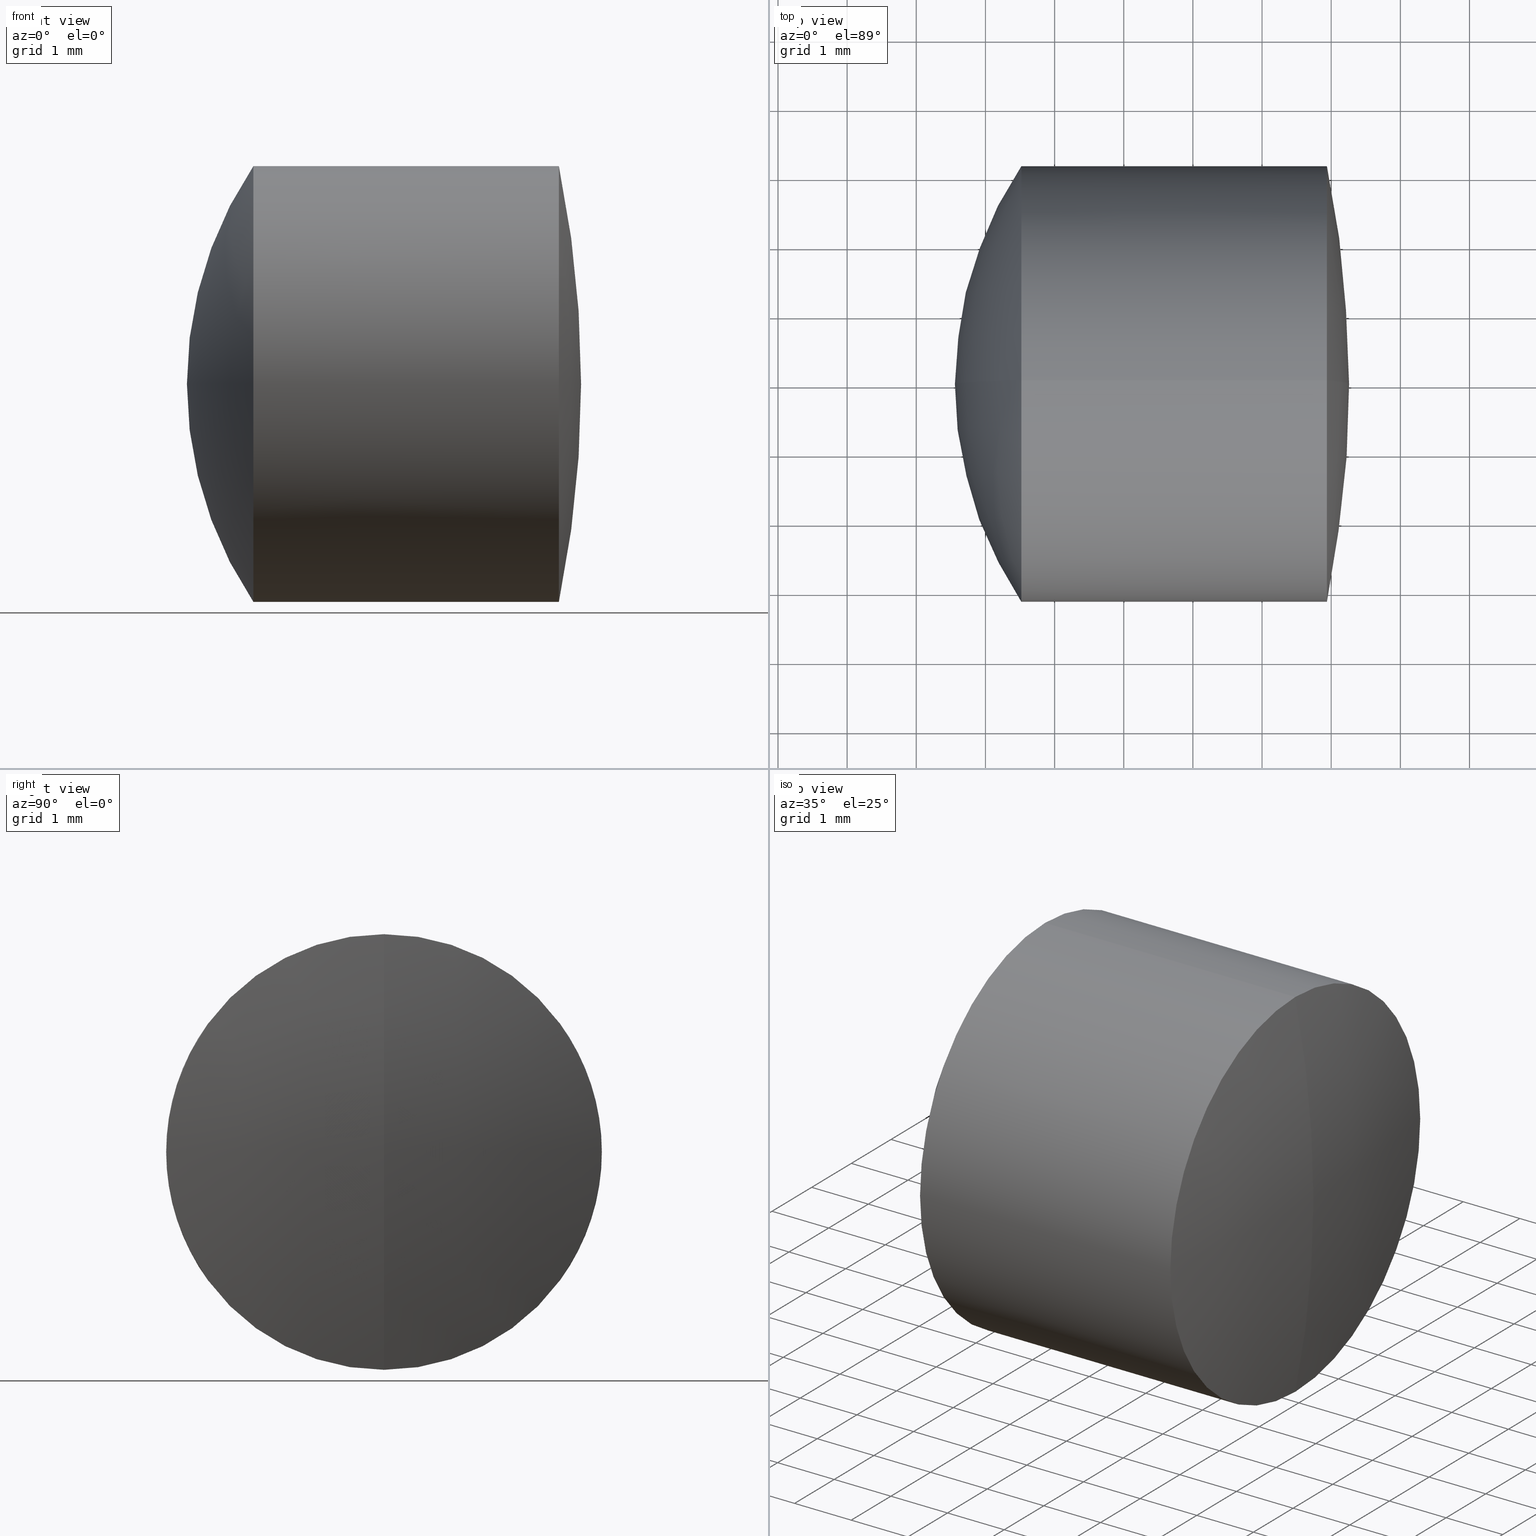
[diagram: canonical four-view strip — front | top / right | iso, engineering-drawing reading convention]
A machine part, canonical four-view strip (front | top / right | iso — engineering-drawing reading convention). The complete STEP part file that produces these views, byte-faithful:
ISO-10303-21;
HEADER;
FILE_DESCRIPTION (( 'STEP AP214' ),
    '1' );
FILE_NAME ('145007.STEP',
    '2019-05-08T03:25:57',
    ( 'user' ),
    ( '΢���й�' ),
    'SwSTEP 2.0',
    'SolidWorks 2016',
    '' );
FILE_SCHEMA (( 'AUTOMOTIVE_DESIGN' ));
ENDSEC;

DATA;
#1 = DIRECTION ( 'NONE',  ( 0.0000000000000000000, -1.000000000000000000, 0.0000000000000000000 ) ) ;
#2 = APPLICATION_CONTEXT ( 'automotive_design' ) ;
#3 = ORIENTED_EDGE ( 'NONE', *, *, #20, .T. ) ;
#4 = AXIS2_PLACEMENT_3D ( 'NONE', #114, #317, #146 ) ;
#5 = CIRCLE ( 'NONE', #118, 5.644999999999998700 ) ;
#6 = VERTEX_POINT ( 'NONE', #38 ) ;
#7 = SURFACE_STYLE_FILL_AREA ( #113 ) ;
#8 = CARTESIAN_POINT ( 'NONE',  ( 1.094604339932686600, 0.0000000000000000000, -3.388131789017201400E-018 ) ) ;
#9 = SPHERICAL_SURFACE ( 'NONE', #140, 15.63099999999999800 ) ;
#10 = ORIENTED_EDGE ( 'NONE', *, *, #183, .F. ) ;
#11 = DIRECTION ( 'NONE',  ( 0.0000000000000000000, 1.000000000000000000, 0.0000000000000000000 ) ) ;
#12 = AXIS2_PLACEMENT_3D ( 'NONE', #312, #35, #219 ) ;
#13 = ORIENTED_EDGE ( 'NONE', *, *, #205, .F. ) ;
#14 = DIRECTION ( 'NONE',  ( -1.000000000000000000, -0.0000000000000000000, -0.0000000000000000000 ) ) ;
#15 = CARTESIAN_POINT ( 'NONE',  ( 1.094604339932686600, 0.0000000000000000000, -3.388131789017201400E-018 ) ) ;
#16 = SURFACE_SIDE_STYLE ('',( #313 ) ) ;
#17 = CARTESIAN_POINT ( 'NONE',  ( -9.372395660067310200, 0.0000000000000000000, 0.0000000000000000000 ) ) ;
#18 = CARTESIAN_POINT ( 'NONE',  ( 6.203604339932685900, 0.0000000000000000000, -3.128856262189234900E-019 ) ) ;
#19 = VERTEX_POINT ( 'NONE', #191 ) ;
#20 = EDGE_CURVE ( 'NONE', #185, #210, #229, .T. ) ;
#21 = CIRCLE ( 'NONE', #338, 3.664000000000002400 ) ;
#22 = DIRECTION ( 'NONE',  ( 0.0000000000000000000, 1.000000000000000000, 0.0000000000000000000 ) ) ;
#23 = CYLINDRICAL_SURFACE ( 'NONE', #291, 3.150000000000000800 ) ;
#24 = SURFACE_SIDE_STYLE ('',( #26 ) ) ;
#25 = ADVANCED_FACE ( 'NONE', ( #57 ), #239, .T. ) ;
#26 = SURFACE_STYLE_FILL_AREA ( #179 ) ;
#27 = EDGE_LOOP ( 'NONE', ( #131, #110, #115, #69 ) ) ;
#28 = LINE ( 'NONE', #72, #119 ) ;
#29 = SPHERICAL_SURFACE ( 'NONE', #216, 5.644999999999998700 ) ;
#30 = PRODUCT_DEFINITION_FORMATION_WITH_SPECIFIED_SOURCE ( '�κ�', '', #45, .NOT_KNOWN. ) ;
#31 = SPHERICAL_SURFACE ( 'NONE', #96, 3.664000000000002400 ) ;
#32 = AXIS2_PLACEMENT_3D ( 'NONE', #340, #36, #290 ) ;
#33 = COLOUR_RGB ( '',1.000000000000000000, 1.000000000000000000, 1.000000000000000000 ) ;
#34 = ORIENTED_EDGE ( 'NONE', *, *, #230, .T. ) ;
#35 = DIRECTION ( 'NONE',  ( 0.0000000000000000000, -1.000000000000000000, 0.0000000000000000000 ) ) ;
#36 = DIRECTION ( 'NONE',  ( 0.0000000000000000000, 1.000000000000000000, 0.0000000000000000000 ) ) ;
#37 = CYLINDRICAL_SURFACE ( 'NONE', #158, 3.150000000000000800 ) ;
#38 = CARTESIAN_POINT ( 'NONE',  ( 6.258604339932689200, 0.0000000000000000000, 9.571227058736139200E-016 ) ) ;
#39 = UNCERTAINTY_MEASURE_WITH_UNIT (LENGTH_MEASURE( 1.000000000000000100E-005 ), #44, 'distance_accuracy_value', 'NONE');
#40 = CARTESIAN_POINT ( 'NONE',  ( 1.519212703871500900, 0.0000000000000000000, 0.0000000000000000000 ) ) ;
#41 = PRESENTATION_LAYER_ASSIGNMENT (  '', '', ( #84 ) ) ;
#42 = DIRECTION ( 'NONE',  ( 0.0000000000000000000, -1.224646799147353200E-016, 1.000000000000000000 ) ) ;
#43 =( NAMED_UNIT ( * ) SI_UNIT ( $, .STERADIAN. ) SOLID_ANGLE_UNIT ( ) );
#44 =( LENGTH_UNIT ( ) NAMED_UNIT ( * ) SI_UNIT ( .MILLI., .METRE. ) );
#45 = PRODUCT ( '145007', '145007', '', ( #226 ) ) ;
#46 = ORIENTED_EDGE ( 'NONE', *, *, #200, .F. ) ;
#47 = DIRECTION ( 'NONE',  ( 0.0000000000000000000, -1.224646799147353500E-016, 1.000000000000000000 ) ) ;
#48 = DIRECTION ( 'NONE',  ( 0.0000000000000000000, 0.0000000000000000000, 1.000000000000000000 ) ) ;
#49 = DIRECTION ( 'NONE',  ( -1.000000000000000000, -0.0000000000000000000, -0.0000000000000000000 ) ) ;
#50 = CARTESIAN_POINT ( 'NONE',  ( 5.937916583646074100, 3.857637417314163200E-016, -3.150000000000000400 ) ) ;
#51 =( LENGTH_UNIT ( ) NAMED_UNIT ( * ) SI_UNIT ( .MILLI., .METRE. ) );
#52 = ADVANCED_FACE ( 'NONE', ( #247 ), #23, .T. ) ;
#53 = AXIS2_PLACEMENT_3D ( 'NONE', #261, #97, #292 ) ;
#54 = ORIENTED_EDGE ( 'NONE', *, *, #94, .F. ) ;
#55 = DIRECTION ( 'NONE',  ( -1.000000000000000000, -0.0000000000000000000, -0.0000000000000000000 ) ) ;
#56 = DIRECTION ( 'NONE',  ( -1.000000000000000000, -0.0000000000000000000, -0.0000000000000000000 ) ) ;
#57 = FACE_OUTER_BOUND ( 'NONE', #117, .T. ) ;
#58 = ORIENTED_EDGE ( 'NONE', *, *, #134, .F. ) ;
#59 = DIRECTION ( 'NONE',  ( 0.0000000000000000000, 0.0000000000000000000, 1.000000000000000000 ) ) ;
#60 = PRODUCT_DEFINITION_CONTEXT ( 'detailed design', #249, 'design' ) ;
#61 = SURFACE_STYLE_USAGE ( .BOTH. , #256 ) ;
#62 = VECTOR ( 'NONE', #325, 1000.000000000000000 ) ;
#63 = AXIS2_PLACEMENT_3D ( 'NONE', #66, #254, #281 ) ;
#64 = CARTESIAN_POINT ( 'NONE',  ( 0.0000000000000000000, 0.0000000000000000000, 0.0000000000000000000 ) ) ;
#65 = DIRECTION ( 'NONE',  ( 0.0000000000000000000, 0.0000000000000000000, 1.000000000000000000 ) ) ;
#66 = CARTESIAN_POINT ( 'NONE',  ( 2.966073281700092800, 0.0000000000000000000, 0.0000000000000000000 ) ) ;
#67 = DIRECTION ( 'NONE',  ( 0.0000000000000000000, 0.0000000000000000000, 1.000000000000000000 ) ) ;
#68 = PRESENTATION_STYLE_ASSIGNMENT (( #61 ) ) ;
#69 = ORIENTED_EDGE ( 'NONE', *, *, #298, .F. ) ;
#70 =( NAMED_UNIT ( * ) SI_UNIT ( $, .STERADIAN. ) SOLID_ANGLE_UNIT ( ) );
#71 = AXIS2_PLACEMENT_3D ( 'NONE', #18, #232, #48 ) ;
#72 = CARTESIAN_POINT ( 'NONE',  ( -0.5519199926577972300, 0.0000000000000000000, 3.150000000000000800 ) ) ;
#73 = ORIENTED_EDGE ( 'NONE', *, *, #269, .F. ) ;
#74 = CARTESIAN_POINT ( 'NONE',  ( -0.8160621761658039000, 3.857637417314162700E-016, -3.149999999999999900 ) ) ;
#75 = DIRECTION ( 'NONE',  ( 0.0000000000000000000, 0.0000000000000000000, 1.000000000000000000 ) ) ;
#76 = FILL_AREA_STYLE_COLOUR ( '', #33 ) ;
#77 = SPHERICAL_SURFACE ( 'NONE', #332, 3.664000000000002400 ) ;
#78 = ORIENTED_EDGE ( 'NONE', *, *, #85, .F. ) ;
#79 = ADVANCED_FACE ( 'NONE', ( #316 ), #37, .T. ) ;
#80 = FACE_OUTER_BOUND ( 'NONE', #221, .T. ) ;
#81 = ORIENTED_EDGE ( 'NONE', *, *, #134, .T. ) ;
#82 = DIRECTION ( 'NONE',  ( 1.000000000000000000, 0.0000000000000000000, 0.0000000000000000000 ) ) ;
#83 = COLOUR_RGB ( '',1.000000000000000000, 1.000000000000000000, 1.000000000000000000 ) ;
#84 = STYLED_ITEM ( 'NONE', ( #68 ), #152 ) ;
#85 = EDGE_CURVE ( 'NONE', #104, #334, #326, .T. ) ;
#86 = EDGE_LOOP ( 'NONE', ( #144, #196, #78 ) ) ;
#87 = AXIS2_PLACEMENT_3D ( 'NONE', #121, #323, #155 ) ;
#88 = CARTESIAN_POINT ( 'NONE',  ( 0.5586043399326868800, 0.0000000000000000000, 3.453436734331214600E-016 ) ) ;
#89 = CARTESIAN_POINT ( 'NONE',  ( 1.519212703871500900, 0.0000000000000000000, 0.0000000000000000000 ) ) ;
#90 = ORIENTED_EDGE ( 'NONE', *, *, #245, .F. ) ;
#91 = FILL_AREA_STYLE_COLOUR ( '', #126 ) ;
#92 = CARTESIAN_POINT ( 'NONE',  ( 2.966073281700091900, 3.857637417314163700E-016, -3.150000000000000800 ) ) ;
#93 = DIRECTION ( 'NONE',  ( 0.0000000000000000000, 0.0000000000000000000, 1.000000000000000000 ) ) ;
#94 = EDGE_CURVE ( 'NONE', #279, #149, #159, .T. ) ;
#95 = FILL_AREA_STYLE_COLOUR ( '', #83 ) ;
#96 = AXIS2_PLACEMENT_3D ( 'NONE', #335, #282, #280 ) ;
#97 = DIRECTION ( 'NONE',  ( 0.0000000000000000000, -1.000000000000000000, 0.0000000000000000000 ) ) ;
#98 = PRESENTATION_STYLE_ASSIGNMENT (( #208 ) ) ;
#99 = ORIENTED_EDGE ( 'NONE', *, *, #277, .F. ) ;
#100 = EDGE_CURVE ( 'NONE', #272, #279, #278, .T. ) ;
#101 = CARTESIAN_POINT ( 'NONE',  ( -9.372395660067310200, 0.0000000000000000000, 0.0000000000000000000 ) ) ;
#102 = DIRECTION ( 'NONE',  ( -0.0000000000000000000, 1.000000000000000000, 1.224646799147353200E-016 ) ) ;
#103 = EDGE_CURVE ( 'NONE', #185, #279, #147, .T. ) ;
#104 = VERTEX_POINT ( 'NONE', #188 ) ;
#105 =( NAMED_UNIT ( * ) PLANE_ANGLE_UNIT ( ) SI_UNIT ( $, .RADIAN. ) );
#106 = AXIS2_PLACEMENT_3D ( 'NONE', #120, #322, #320 ) ;
#107 = ORIENTED_EDGE ( 'NONE', *, *, #214, .T. ) ;
#108 = ORIENTED_EDGE ( 'NONE', *, *, #94, .T. ) ;
#109 = EDGE_CURVE ( 'NONE', #334, #176, #171, .T. ) ;
#110 = ORIENTED_EDGE ( 'NONE', *, *, #269, .T. ) ;
#111 = CARTESIAN_POINT ( 'NONE',  ( 6.203604339932685900, 0.0000000000000000000, -3.128856262189234900E-019 ) ) ;
#112 = DIRECTION ( 'NONE',  ( 0.0000000000000000000, 0.0000000000000000000, 1.000000000000000000 ) ) ;
#113 = FILL_AREA_STYLE ('',( #91 ) ) ;
#114 = CARTESIAN_POINT ( 'NONE',  ( 2.966073281700092800, 0.0000000000000000000, 0.0000000000000000000 ) ) ;
#115 = ORIENTED_EDGE ( 'NONE', *, *, #251, .T. ) ;
#116 = DIRECTION ( 'NONE',  ( -1.000000000000000000, -0.0000000000000000000, -0.0000000000000000000 ) ) ;
#117 = EDGE_LOOP ( 'NONE', ( #58, #139, #193 ) ) ;
#118 = AXIS2_PLACEMENT_3D ( 'NONE', #263, #102, #296 ) ;
#119 = VECTOR ( 'NONE', #223, 1000.000000000000000 ) ;
#120 = CARTESIAN_POINT ( 'NONE',  ( -0.8160621761658039000, 0.0000000000000000000, 0.0000000000000000000 ) ) ;
#121 = CARTESIAN_POINT ( 'NONE',  ( 5.937916583646074100, 0.0000000000000000000, 0.0000000000000000000 ) ) ;
#122 = CARTESIAN_POINT ( 'NONE',  ( -9.372395660067310200, 0.0000000000000000000, 0.0000000000000000000 ) ) ;
#123 = DIRECTION ( 'NONE',  ( 0.0000000000000000000, 0.0000000000000000000, 1.000000000000000000 ) ) ;
#124 = EDGE_LOOP ( 'NONE', ( #99, #212, #108 ) ) ;
#125 = AXIS2_PLACEMENT_3D ( 'NONE', #89, #255, #59 ) ;
#126 = COLOUR_RGB ( '',1.000000000000000000, 1.000000000000000000, 1.000000000000000000 ) ;
#127 = ORIENTED_EDGE ( 'NONE', *, *, #200, .T. ) ;
#128 = ADVANCED_FACE ( 'NONE', ( #209 ), #31, .F. ) ;
#129 = EDGE_LOOP ( 'NONE', ( #310, #127, #163, #342 ) ) ;
#130 = CIRCLE ( 'NONE', #175, 3.664000000000002400 ) ;
#131 = ORIENTED_EDGE ( 'NONE', *, *, #109, .F. ) ;
#132 = PRODUCT_DEFINITION_SHAPE ( 'NONE', 'NONE',  #302 ) ;
#133 = CARTESIAN_POINT ( 'NONE',  ( 5.937916583646074100, 0.0000000000000000000, 0.0000000000000000000 ) ) ;
#134 = EDGE_CURVE ( 'NONE', #154, #185, #270, .T. ) ;
#135 = FACE_OUTER_BOUND ( 'NONE', #86, .T. ) ;
#136 = CLOSED_SHELL ( 'NONE', ( #271, #79, #243, #128, #52, #301 ) ) ;
#137 = UNCERTAINTY_MEASURE_WITH_UNIT (LENGTH_MEASURE( 1.000000000000000100E-005 ), #222, 'distance_accuracy_value', 'NONE');
#138 = VECTOR ( 'NONE', #141, 1000.000000000000000 ) ;
#139 = ORIENTED_EDGE ( 'NONE', *, *, #205, .T. ) ;
#140 = AXIS2_PLACEMENT_3D ( 'NONE', #101, #344, #346 ) ;
#141 = DIRECTION ( 'NONE',  ( -1.000000000000000000, -0.0000000000000000000, -0.0000000000000000000 ) ) ;
#142 = DIRECTION ( 'NONE',  ( -1.000000000000000000, -0.0000000000000000000, -0.0000000000000000000 ) ) ;
#143 = DIRECTION ( 'NONE',  ( 0.0000000000000000000, -1.000000000000000000, 0.0000000000000000000 ) ) ;
#144 = ORIENTED_EDGE ( 'NONE', *, *, #246, .F. ) ;
#145 =( NAMED_UNIT ( * ) SI_UNIT ( $, .STERADIAN. ) SOLID_ANGLE_UNIT ( ) );
#146 = DIRECTION ( 'NONE',  ( 0.0000000000000000000, 0.0000000000000000000, 1.000000000000000000 ) ) ;
#147 = LINE ( 'NONE', #339, #138 ) ;
#148 = STYLED_ITEM ( 'NONE', ( #236 ), #241 ) ;
#149 = VERTEX_POINT ( 'NONE', #88 ) ;
#150 = DIRECTION ( 'NONE',  ( -0.0000000000000000000, 1.000000000000000000, 1.224646799147353200E-016 ) ) ;
#151 = SPHERICAL_SURFACE ( 'NONE', #32, 3.664000000000002400 ) ;
#152 = MANIFOLD_SOLID_BREP ( '��ת1', #288 ) ;
#153 = LINE ( 'NONE', #74, #62 ) ;
#154 = VERTEX_POINT ( 'NONE', #285 ) ;
#155 = DIRECTION ( 'NONE',  ( 0.0000000000000000000, 0.0000000000000000000, 1.000000000000000000 ) ) ;
#156 = CIRCLE ( 'NONE', #195, 3.664000000000002400 ) ;
#157 = CARTESIAN_POINT ( 'NONE',  ( 1.094604339932686600, 0.0000000000000000000, -3.388131789017201400E-018 ) ) ;
#158 = AXIS2_PLACEMENT_3D ( 'NONE', #227, #14, #173 ) ;
#159 = CIRCLE ( 'NONE', #165, 5.644999999999998700 ) ;
#160 = ADVANCED_FACE ( 'NONE', ( #170 ), #77, .T. ) ;
#161 = AXIS2_PLACEMENT_3D ( 'NONE', #133, #55, #250 ) ;
#162 = AXIS2_PLACEMENT_3D ( 'NONE', #203, #49, #237 ) ;
#163 = ORIENTED_EDGE ( 'NONE', *, *, #103, .T. ) ;
#164 = EDGE_LOOP ( 'NONE', ( #343, #34, #300 ) ) ;
#165 = AXIS2_PLACEMENT_3D ( 'NONE', #336, #143, #311 ) ;
#166 = AXIS2_PLACEMENT_3D ( 'NONE', #40, #228, #67 ) ;
#167 = CARTESIAN_POINT ( 'NONE',  ( -0.5519199926577972300, 3.857637417314163700E-016, -3.150000000000000800 ) ) ;
#168 = EDGE_LOOP ( 'NONE', ( #321, #283, #107 ) ) ;
#169 = CYLINDRICAL_SURFACE ( 'NONE', #106, 3.149999999999999900 ) ;
#170 = FACE_OUTER_BOUND ( 'NONE', #287, .T. ) ;
#171 = LINE ( 'NONE', #167, #184 ) ;
#172 = CARTESIAN_POINT ( 'NONE',  ( -0.5519199926577972300, 0.0000000000000000000, 0.0000000000000000000 ) ) ;
#173 = DIRECTION ( 'NONE',  ( 0.0000000000000000000, 0.0000000000000000000, 1.000000000000000000 ) ) ;
#174 = FILL_AREA_STYLE ('',( #95 ) ) ;
#175 = AXIS2_PLACEMENT_3D ( 'NONE', #157, #1, #178 ) ;
#176 = VERTEX_POINT ( 'NONE', #92 ) ;
#177 = ORIENTED_EDGE ( 'NONE', *, *, #251, .F. ) ;
#178 = DIRECTION ( 'NONE',  ( 0.0000000000000000000, 0.0000000000000000000, -1.000000000000000000 ) ) ;
#179 = FILL_AREA_STYLE ('',( #76 ) ) ;
#180 = ADVANCED_FACE ( 'NONE', ( #304 ), #29, .T. ) ;
#181 = ORIENTED_EDGE ( 'NONE', *, *, #103, .F. ) ;
#182 = FACE_OUTER_BOUND ( 'NONE', #129, .T. ) ;
#183 = EDGE_CURVE ( 'NONE', #279, #272, #324, .T. ) ;
#184 = VECTOR ( 'NONE', #142, 1000.000000000000000 ) ;
#185 = VERTEX_POINT ( 'NONE', #257 ) ;
#186 = FACE_OUTER_BOUND ( 'NONE', #234, .T. ) ;
#187 = AXIS2_PLACEMENT_3D ( 'NONE', #122, #22, #75 ) ;
#188 = CARTESIAN_POINT ( 'NONE',  ( 5.937916583646074100, 0.0000000000000000000, 3.150000000000000400 ) ) ;
#189 = CYLINDRICAL_SURFACE ( 'NONE', #274, 3.149999999999999900 ) ;
#190 = DIRECTION ( 'NONE',  ( 0.0000000000000000000, 0.0000000000000000000, 1.000000000000000000 ) ) ;
#191 = CARTESIAN_POINT ( 'NONE',  ( 4.758604339932689200, 0.0000000000000000000, 2.209671618147780500E-016 ) ) ;
#192 = CARTESIAN_POINT ( 'NONE',  ( 2.966073281700092800, 3.857637417314162700E-016, -3.149999999999999900 ) ) ;
#193 = ORIENTED_EDGE ( 'NONE', *, *, #20, .F. ) ;
#194 = DIRECTION ( 'NONE',  ( -0.0000000000000000000, 1.000000000000000000, 1.224646799147353200E-016 ) ) ;
#195 = AXIS2_PLACEMENT_3D ( 'NONE', #15, #194, #42 ) ;
#196 = ORIENTED_EDGE ( 'NONE', *, *, #245, .T. ) ;
#197 = SURFACE_STYLE_USAGE ( .BOTH. , #16 ) ;
#198 = CIRCLE ( 'NONE', #53, 15.63099999999999800 ) ;
#199 = DIRECTION ( 'NONE',  ( -0.0000000000000000000, 1.000000000000000000, 1.224646799147353200E-016 ) ) ;
#200 = EDGE_CURVE ( 'NONE', #210, #185, #224, .T. ) ;
#201 = SPHERICAL_SURFACE ( 'NONE', #187, 15.63099999999999800 ) ;
#202 = ORIENTED_EDGE ( 'NONE', *, *, #85, .T. ) ;
#203 = CARTESIAN_POINT ( 'NONE',  ( 2.966073281700091900, 0.0000000000000000000, 0.0000000000000000000 ) ) ;
#204 = CIRCLE ( 'NONE', #242, 15.63099999999999800 ) ;
#205 = EDGE_CURVE ( 'NONE', #154, #210, #156, .T. ) ;
#206 = MECHANICAL_DESIGN_GEOMETRIC_PRESENTATION_REPRESENTATION (  '', ( #148 ), #259 ) ;
#207 = VERTEX_POINT ( 'NONE', #337 ) ;
#208 = SURFACE_STYLE_USAGE ( .BOTH. , #24 ) ;
#209 = FACE_OUTER_BOUND ( 'NONE', #168, .T. ) ;
#210 = VERTEX_POINT ( 'NONE', #192 ) ;
#211 = CIRCLE ( 'NONE', #162, 3.150000000000000800 ) ;
#212 = ORIENTED_EDGE ( 'NONE', *, *, #100, .T. ) ;
#213 = CARTESIAN_POINT ( 'NONE',  ( 1.094604339932686600, 0.0000000000000000000, -3.388131789017201400E-018 ) ) ;
#214 = EDGE_CURVE ( 'NONE', #207, #176, #262, .T. ) ;
#215 = EDGE_LOOP ( 'NONE', ( #3, #306, #10, #181 ) ) ;
#216 = AXIS2_PLACEMENT_3D ( 'NONE', #111, #11, #315 ) ;
#217 = APPLICATION_PROTOCOL_DEFINITION ( 'draft international standard', 'automotive_design', 1998, #249 ) ;
#218 =( NAMED_UNIT ( * ) PLANE_ANGLE_UNIT ( ) SI_UNIT ( $, .RADIAN. ) );
#219 = DIRECTION ( 'NONE',  ( 0.0000000000000000000, 0.0000000000000000000, -1.000000000000000000 ) ) ;
#220 = CIRCLE ( 'NONE', #87, 3.150000000000000400 ) ;
#221 = EDGE_LOOP ( 'NONE', ( #90, #295, #73 ) ) ;
#222 =( LENGTH_UNIT ( ) NAMED_UNIT ( * ) SI_UNIT ( .MILLI., .METRE. ) );
#223 = DIRECTION ( 'NONE',  ( -1.000000000000000000, -0.0000000000000000000, -0.0000000000000000000 ) ) ;
#224 = CIRCLE ( 'NONE', #4, 3.149999999999999900 ) ;
#225 = DIRECTION ( 'NONE',  ( 0.0000000000000000000, 1.000000000000000000, 0.0000000000000000000 ) ) ;
#226 = PRODUCT_CONTEXT ( 'NONE', #2, 'mechanical' ) ;
#227 = CARTESIAN_POINT ( 'NONE',  ( -0.5519199926577972300, 0.0000000000000000000, 0.0000000000000000000 ) ) ;
#228 = DIRECTION ( 'NONE',  ( -1.000000000000000000, -0.0000000000000000000, -0.0000000000000000000 ) ) ;
#229 = CIRCLE ( 'NONE', #63, 3.149999999999999900 ) ;
#230 = EDGE_CURVE ( 'NONE', #19, #176, #21, .T. ) ;
#231 =( NAMED_UNIT ( * ) PLANE_ANGLE_UNIT ( ) SI_UNIT ( $, .RADIAN. ) );
#232 = DIRECTION ( 'NONE',  ( 0.0000000000000000000, 1.000000000000000000, 0.0000000000000000000 ) ) ;
#233 =( GEOMETRIC_REPRESENTATION_CONTEXT ( 3 ) GLOBAL_UNCERTAINTY_ASSIGNED_CONTEXT ( ( #267 ) ) GLOBAL_UNIT_ASSIGNED_CONTEXT ( ( #238, #105, #299 ) ) REPRESENTATION_CONTEXT ( 'NONE', 'WORKASPACE' ) );
#234 = EDGE_LOOP ( 'NONE', ( #303, #252, #54 ) ) ;
#235 = CARTESIAN_POINT ( 'NONE',  ( 1.519212703871501300, 0.0000000000000000000, 3.150000000000000400 ) ) ;
#236 = PRESENTATION_STYLE_ASSIGNMENT (( #197 ) ) ;
#237 = DIRECTION ( 'NONE',  ( 0.0000000000000000000, 0.0000000000000000000, 1.000000000000000000 ) ) ;
#238 =( LENGTH_UNIT ( ) NAMED_UNIT ( * ) SI_UNIT ( .MILLI., .METRE. ) );
#239 = SPHERICAL_SURFACE ( 'NONE', #273, 3.664000000000002400 ) ;
#240 =( NAMED_UNIT ( * ) PLANE_ANGLE_UNIT ( ) SI_UNIT ( $, .RADIAN. ) );
#241 = MANIFOLD_SOLID_BREP ( '��ת3', #136 ) ;
#242 = AXIS2_PLACEMENT_3D ( 'NONE', #17, #199, #47 ) ;
#243 = ADVANCED_FACE ( 'NONE', ( #286 ), #151, .F. ) ;
#244 = ORIENTED_EDGE ( 'NONE', *, *, #214, .F. ) ;
#245 = EDGE_CURVE ( 'NONE', #6, #334, #204, .T. ) ;
#246 = EDGE_CURVE ( 'NONE', #6, #104, #198, .T. ) ;
#247 = FACE_OUTER_BOUND ( 'NONE', #27, .T. ) ;
#248 = PRESENTATION_LAYER_ASSIGNMENT (  '', '', ( #148 ) ) ;
#249 = APPLICATION_CONTEXT ( 'automotive_design' ) ;
#250 = DIRECTION ( 'NONE',  ( 0.0000000000000000000, 0.0000000000000000000, 1.000000000000000000 ) ) ;
#251 = EDGE_CURVE ( 'NONE', #104, #207, #28, .T. ) ;
#252 = ORIENTED_EDGE ( 'NONE', *, *, #277, .T. ) ;
#253 = PRESENTATION_LAYER_ASSIGNMENT (  '', '', ( #308 ) ) ;
#254 = DIRECTION ( 'NONE',  ( -1.000000000000000000, -0.0000000000000000000, -0.0000000000000000000 ) ) ;
#255 = DIRECTION ( 'NONE',  ( -1.000000000000000000, -0.0000000000000000000, -0.0000000000000000000 ) ) ;
#256 = SURFACE_SIDE_STYLE ('',( #7 ) ) ;
#257 = CARTESIAN_POINT ( 'NONE',  ( 2.966073281700092800, 0.0000000000000000000, 3.149999999999999900 ) ) ;
#258 = DIRECTION ( 'NONE',  ( 0.0000000000000000000, 0.0000000000000000000, 1.000000000000000000 ) ) ;
#259 =( GEOMETRIC_REPRESENTATION_CONTEXT ( 3 ) GLOBAL_UNCERTAINTY_ASSIGNED_CONTEXT ( ( #39 ) ) GLOBAL_UNIT_ASSIGNED_CONTEXT ( ( #44, #231, #70 ) ) REPRESENTATION_CONTEXT ( 'NONE', 'WORKASPACE' ) );
#260 = EDGE_LOOP ( 'NONE', ( #202, #330, #244, #177 ) ) ;
#261 = CARTESIAN_POINT ( 'NONE',  ( -9.372395660067310200, 0.0000000000000000000, 0.0000000000000000000 ) ) ;
#262 = CIRCLE ( 'NONE', #319, 3.150000000000000800 ) ;
#263 = CARTESIAN_POINT ( 'NONE',  ( 6.203604339932685900, 0.0000000000000000000, -3.128856262189234900E-019 ) ) ;
#264 = CARTESIAN_POINT ( 'NONE',  ( -0.8160621761658039000, 0.0000000000000000000, 0.0000000000000000000 ) ) ;
#265 = ADVANCED_FACE ( 'NONE', ( #182 ), #169, .T. ) ;
#266 =( GEOMETRIC_REPRESENTATION_CONTEXT ( 3 ) GLOBAL_UNCERTAINTY_ASSIGNED_CONTEXT ( ( #329 ) ) GLOBAL_UNIT_ASSIGNED_CONTEXT ( ( #51, #240, #43 ) ) REPRESENTATION_CONTEXT ( 'NONE', 'WORKASPACE' ) );
#267 = UNCERTAINTY_MEASURE_WITH_UNIT (LENGTH_MEASURE( 1.000000000000000100E-005 ), #238, 'distance_accuracy_value', 'NONE');
#268 = ADVANCED_FACE ( 'NONE', ( #186 ), #331, .T. ) ;
#269 = EDGE_CURVE ( 'NONE', #334, #104, #220, .T. ) ;
#270 = CIRCLE ( 'NONE', #12, 3.664000000000002400 ) ;
#271 = ADVANCED_FACE ( 'NONE', ( #135 ), #9, .T. ) ;
#272 = VERTEX_POINT ( 'NONE', #294 ) ;
#273 = AXIS2_PLACEMENT_3D ( 'NONE', #213, #309, #93 ) ;
#274 = AXIS2_PLACEMENT_3D ( 'NONE', #264, #297, #123 ) ;
#275 = SHAPE_DEFINITION_REPRESENTATION ( #132, #333 ) ;
#276 = MECHANICAL_DESIGN_GEOMETRIC_PRESENTATION_REPRESENTATION (  '', ( #84 ), #293 ) ;
#277 = EDGE_CURVE ( 'NONE', #272, #149, #5, .T. ) ;
#278 = CIRCLE ( 'NONE', #125, 3.149999999999999900 ) ;
#279 = VERTEX_POINT ( 'NONE', #235 ) ;
#280 = DIRECTION ( 'NONE',  ( 0.0000000000000000000, 0.0000000000000000000, 1.000000000000000000 ) ) ;
#281 = DIRECTION ( 'NONE',  ( 0.0000000000000000000, 0.0000000000000000000, 1.000000000000000000 ) ) ;
#282 = DIRECTION ( 'NONE',  ( 0.0000000000000000000, 1.000000000000000000, 0.0000000000000000000 ) ) ;
#283 = ORIENTED_EDGE ( 'NONE', *, *, #307, .T. ) ;
#284 = EDGE_CURVE ( 'NONE', #210, #272, #153, .T. ) ;
#285 = CARTESIAN_POINT ( 'NONE',  ( 4.758604339932689200, 0.0000000000000000000, 2.209671618147780500E-016 ) ) ;
#286 = FACE_OUTER_BOUND ( 'NONE', #164, .T. ) ;
#287 = EDGE_LOOP ( 'NONE', ( #13, #81, #46 ) ) ;
#288 = CLOSED_SHELL ( 'NONE', ( #25, #328, #268, #180, #265, #160 ) ) ;
#289 = CARTESIAN_POINT ( 'NONE',  ( 2.966073281700091900, 0.0000000000000000000, 0.0000000000000000000 ) ) ;
#290 = DIRECTION ( 'NONE',  ( 0.0000000000000000000, 0.0000000000000000000, 1.000000000000000000 ) ) ;
#291 = AXIS2_PLACEMENT_3D ( 'NONE', #172, #56, #258 ) ;
#292 = DIRECTION ( 'NONE',  ( 0.0000000000000000000, 0.0000000000000000000, -1.000000000000000000 ) ) ;
#293 =( GEOMETRIC_REPRESENTATION_CONTEXT ( 3 ) GLOBAL_UNCERTAINTY_ASSIGNED_CONTEXT ( ( #137 ) ) GLOBAL_UNIT_ASSIGNED_CONTEXT ( ( #222, #218, #145 ) ) REPRESENTATION_CONTEXT ( 'NONE', 'WORKASPACE' ) );
#294 = CARTESIAN_POINT ( 'NONE',  ( 1.519212703871501300, 3.857637417314163200E-016, -3.150000000000000400 ) ) ;
#295 = ORIENTED_EDGE ( 'NONE', *, *, #246, .T. ) ;
#296 = DIRECTION ( 'NONE',  ( 0.0000000000000000000, -1.224646799147353200E-016, 1.000000000000000000 ) ) ;
#297 = DIRECTION ( 'NONE',  ( -1.000000000000000000, -0.0000000000000000000, -0.0000000000000000000 ) ) ;
#298 = EDGE_CURVE ( 'NONE', #176, #207, #211, .T. ) ;
#299 =( NAMED_UNIT ( * ) SI_UNIT ( $, .STERADIAN. ) SOLID_ANGLE_UNIT ( ) );
#300 = ORIENTED_EDGE ( 'NONE', *, *, #298, .T. ) ;
#301 = ADVANCED_FACE ( 'NONE', ( #80 ), #201, .T. ) ;
#302 = PRODUCT_DEFINITION ( 'δ֪', '', #30, #60 ) ;
#303 = ORIENTED_EDGE ( 'NONE', *, *, #183, .T. ) ;
#304 = FACE_OUTER_BOUND ( 'NONE', #124, .T. ) ;
#305 = AXIS2_PLACEMENT_3D ( 'NONE', #64, #112, #82 ) ;
#306 = ORIENTED_EDGE ( 'NONE', *, *, #284, .T. ) ;
#307 = EDGE_CURVE ( 'NONE', #19, #207, #130, .T. ) ;
#308 = STYLED_ITEM ( 'NONE', ( #98 ), #333 ) ;
#309 = DIRECTION ( 'NONE',  ( 0.0000000000000000000, 1.000000000000000000, 0.0000000000000000000 ) ) ;
#310 = ORIENTED_EDGE ( 'NONE', *, *, #284, .F. ) ;
#311 = DIRECTION ( 'NONE',  ( 0.0000000000000000000, 0.0000000000000000000, -1.000000000000000000 ) ) ;
#312 = CARTESIAN_POINT ( 'NONE',  ( 1.094604339932686600, 0.0000000000000000000, -3.388131789017201400E-018 ) ) ;
#313 = SURFACE_STYLE_FILL_AREA ( #174 ) ;
#314 = PRODUCT_RELATED_PRODUCT_CATEGORY ( 'part', '', ( #45 ) ) ;
#315 = DIRECTION ( 'NONE',  ( 0.0000000000000000000, 0.0000000000000000000, 1.000000000000000000 ) ) ;
#316 = FACE_OUTER_BOUND ( 'NONE', #260, .T. ) ;
#317 = DIRECTION ( 'NONE',  ( -1.000000000000000000, -0.0000000000000000000, -0.0000000000000000000 ) ) ;
#318 = CARTESIAN_POINT ( 'NONE',  ( 1.094604339932686600, 0.0000000000000000000, -3.388131789017201400E-018 ) ) ;
#319 = AXIS2_PLACEMENT_3D ( 'NONE', #289, #116, #190 ) ;
#320 = DIRECTION ( 'NONE',  ( 0.0000000000000000000, 0.0000000000000000000, 1.000000000000000000 ) ) ;
#321 = ORIENTED_EDGE ( 'NONE', *, *, #230, .F. ) ;
#322 = DIRECTION ( 'NONE',  ( -1.000000000000000000, -0.0000000000000000000, -0.0000000000000000000 ) ) ;
#323 = DIRECTION ( 'NONE',  ( -1.000000000000000000, -0.0000000000000000000, -0.0000000000000000000 ) ) ;
#324 = CIRCLE ( 'NONE', #166, 3.149999999999999900 ) ;
#325 = DIRECTION ( 'NONE',  ( -1.000000000000000000, -0.0000000000000000000, -0.0000000000000000000 ) ) ;
#326 = CIRCLE ( 'NONE', #161, 3.150000000000000400 ) ;
#327 = APPLICATION_PROTOCOL_DEFINITION ( 'draft international standard', 'automotive_design', 1998, #2 ) ;
#328 = ADVANCED_FACE ( 'NONE', ( #347 ), #189, .T. ) ;
#329 = UNCERTAINTY_MEASURE_WITH_UNIT (LENGTH_MEASURE( 1.000000000000000100E-005 ), #51, 'distance_accuracy_value', 'NONE');
#330 = ORIENTED_EDGE ( 'NONE', *, *, #109, .T. ) ;
#331 = SPHERICAL_SURFACE ( 'NONE', #71, 5.644999999999998700 ) ;
#332 = AXIS2_PLACEMENT_3D ( 'NONE', #8, #225, #65 ) ;
#333 = ADVANCED_BREP_SHAPE_REPRESENTATION ( '145007', ( #152, #241, #305 ), #233 ) ;
#334 = VERTEX_POINT ( 'NONE', #50 ) ;
#335 = CARTESIAN_POINT ( 'NONE',  ( 1.094604339932686600, 0.0000000000000000000, -3.388131789017201400E-018 ) ) ;
#336 = CARTESIAN_POINT ( 'NONE',  ( 6.203604339932685900, 0.0000000000000000000, -3.128856262189234900E-019 ) ) ;
#337 = CARTESIAN_POINT ( 'NONE',  ( 2.966073281700091900, 0.0000000000000000000, 3.150000000000000800 ) ) ;
#338 = AXIS2_PLACEMENT_3D ( 'NONE', #318, #150, #341 ) ;
#339 = CARTESIAN_POINT ( 'NONE',  ( -0.8160621761658039000, 0.0000000000000000000, 3.149999999999999900 ) ) ;
#340 = CARTESIAN_POINT ( 'NONE',  ( 1.094604339932686600, 0.0000000000000000000, -3.388131789017201400E-018 ) ) ;
#341 = DIRECTION ( 'NONE',  ( 0.0000000000000000000, -1.224646799147353200E-016, 1.000000000000000000 ) ) ;
#342 = ORIENTED_EDGE ( 'NONE', *, *, #100, .F. ) ;
#343 = ORIENTED_EDGE ( 'NONE', *, *, #307, .F. ) ;
#344 = DIRECTION ( 'NONE',  ( 0.0000000000000000000, 1.000000000000000000, 0.0000000000000000000 ) ) ;
#345 = MECHANICAL_DESIGN_GEOMETRIC_PRESENTATION_REPRESENTATION (  '', ( #308 ), #266 ) ;
#346 = DIRECTION ( 'NONE',  ( 0.0000000000000000000, 0.0000000000000000000, 1.000000000000000000 ) ) ;
#347 = FACE_OUTER_BOUND ( 'NONE', #215, .T. ) ;
ENDSEC;
END-ISO-10303-21;
